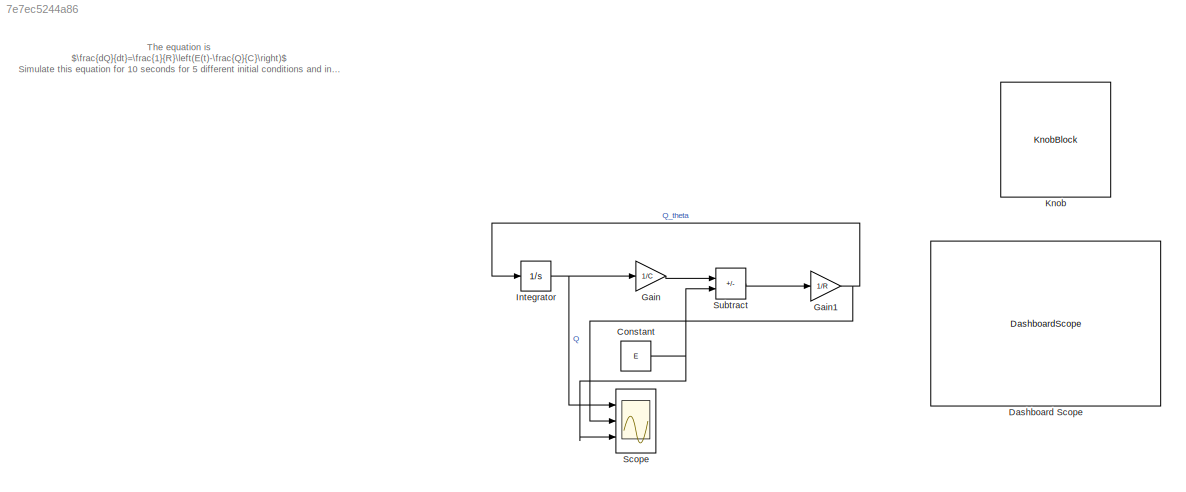
MODEL slx_7e7ec5244a86
KIND model
CONFIG AbsTol = auto
CONFIG EnableMultiTasking = off
CONFIG FixedStep = auto
CONFIG MaxStep = auto
CONFIG MinStep = auto
CONFIG RelTol = 1e-3
CONFIG SampleTimeConstraint = Unconstrained
CONFIG Solver = VariableStepAuto
CONFIG SolverName = VariableStepAuto
CONFIG StartTime = 0.0
CONFIG StopTime = 10
WORKSPACE source: mxarray member
WORKSPACE C = 1e-06
WORKSPACE E = 100
WORKSPACE R = 10
BLOCK [Constant] Constant
  Value = E
BLOCK [DashboardScope] Dashboard Scope
BLOCK [Gain] Gain
  Gain = 1/C
BLOCK [Gain] Gain1
  Gain = 1/R
BLOCK [Integrator] Integrator
  Ports = [1, 1]
BLOCK [KnobBlock] Knob
BLOCK [Scope] Scope
  Floating = off
  NumInputPorts = 3
  Ports = [3]
  ScopeSpecificationString = Simulink.scopes.TimeScopeBlockCfg('CurrentConfiguration', extmgr.ConfigurationSet(extmgr.Configuration('Core','General UI',true),extmgr.Configuration('Core','Source UI',true),extmgr.Configuration('Sources','WiredSimulink',true),extmgr.Configuration('Visuals','Time Domain',true,'SerializedDisplays',{struct('MinYLimReal','-0.0000006','MaxYLimReal','0.0000055','YLabelReal','','MinYLimMag','0.0000000'...<+2689ch>
BLOCK [Sum] Subtract
  IconShape = rectangular
  Inputs = -+
  Ports = [2, 1]
ANNOTATION (root): The equation is $\frac{dQ}{dt}=\frac{1}{R}\left(E(t)-\frac{Q}{C}\right)$ Simulate this equation for 10 seconds for 5 different initial conditions and inputs E(t)
NET Constant:1 -> Scope:3, Subtract:2
NET Gain1:1 -> Integrator:1, Scope:2
LINE Gain:1 -> Subtract:1
NET Integrator:1 -> Gain:1, Scope:1
LINE Subtract:1 -> Gain1:1
note: NET lines group one-source signal fan-out (src -> all destinations, sorted); 1:1 wires keep LINE
